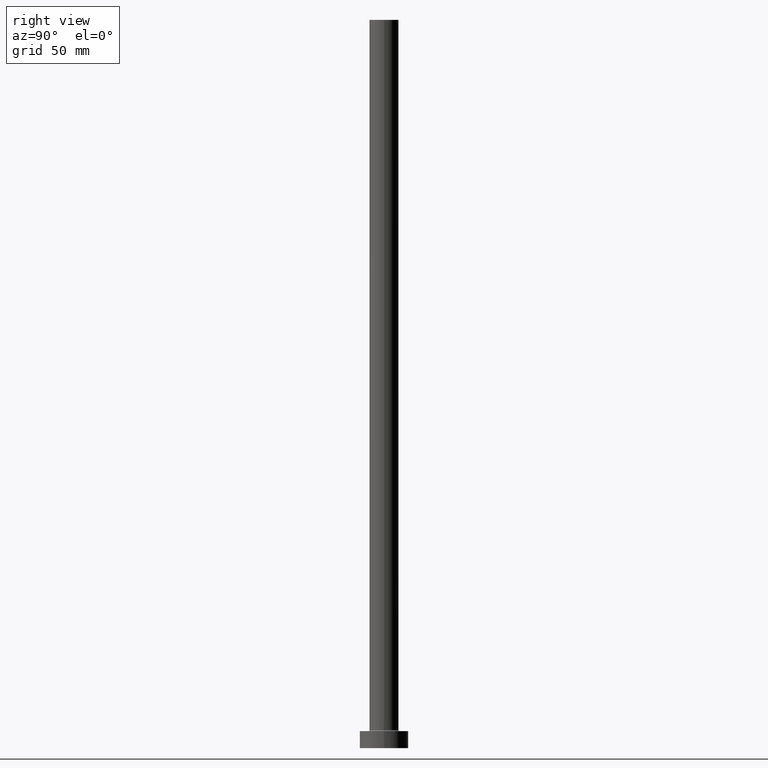
[diagram: clean part render]
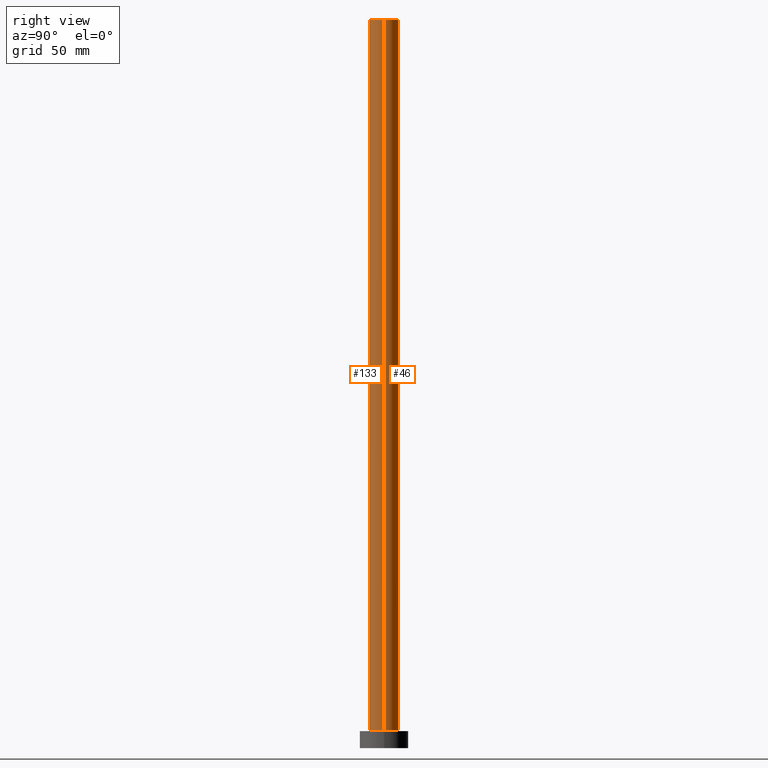
[diagram: same view with one multi-face feature highlighted, each face labeled with its STEP entity id]
A machine part, right view. The highlighted faces form ONE feature: a constant-radius fillet chain: 2 tangent blend faces with common blend radius 6 mm. The faces share edges in the B-rep.
Their STEP definitions:
[1] entity #133 (Cylinder):
#28 = EDGE_CURVE ( 'NONE', #340, #48, #40, .T. ) ;
#37 = EDGE_CURVE ( 'NONE', #48, #116, #206, .T. ) ;
#40 = CIRCLE ( 'NONE', #148, 6.000000000000000888 ) ;
#48 = VERTEX_POINT ( 'NONE', #94 ) ;
#73 = CARTESIAN_POINT ( 'NONE',  ( 0.000000000000000000, 0.000000000000000000, 300.0000000000000000 ) ) ;
#74 = ORIENTED_EDGE ( 'NONE', *, *, #441, .T. ) ;
#75 = DIRECTION ( 'NONE',  ( -0.000000000000000000, -0.000000000000000000, -1.000000000000000000 ) ) ;
#94 = CARTESIAN_POINT ( 'NONE',  ( 6.000000000000000888, 7.347880794884120722E-16, 300.0000000000000000 ) ) ;
#116 = VERTEX_POINT ( 'NONE', #210 ) ;
#133 = ADVANCED_FACE ( 'NONE', ( #392 ), #422, .T. ) ;
#136 = VECTOR ( 'NONE', #416, 1000.000000000000000 ) ;
#137 = DIRECTION ( 'NONE',  ( -1.000000000000000000, 0.000000000000000000, 0.000000000000000000 ) ) ;
#145 = EDGE_CURVE ( 'NONE', #340, #252, #430, .T. ) ;
#148 = AXIS2_PLACEMENT_3D ( 'NONE', #350, #408, #380 ) ;
#154 = ORIENTED_EDGE ( 'NONE', *, *, #28, .F. ) ;
#178 = DIRECTION ( 'NONE',  ( 1.000000000000000000, 0.000000000000000000, 0.000000000000000000 ) ) ;
#202 = CARTESIAN_POINT ( 'NONE',  ( -6.000000000000000888, 0.000000000000000000, 300.0000000000000000 ) ) ;
#206 = LINE ( 'NONE', #382, #136 ) ;
#210 = CARTESIAN_POINT ( 'NONE',  ( 6.000000000000000888, 7.347880794884120722E-16, 7.500000000000007105 ) ) ;
#216 = ORIENTED_EDGE ( 'NONE', *, *, #145, .T. ) ;
#249 = CARTESIAN_POINT ( 'NONE',  ( -6.000000000000000888, 0.000000000000000000, 300.0000000000000000 ) ) ;
#251 = DIRECTION ( 'NONE',  ( -0.000000000000000000, -0.000000000000000000, -1.000000000000000000 ) ) ;
#252 = VERTEX_POINT ( 'NONE', #370 ) ;
#256 = DIRECTION ( 'NONE',  ( 0.000000000000000000, 0.000000000000000000, 1.000000000000000000 ) ) ;
#261 = VECTOR ( 'NONE', #75, 1000.000000000000000 ) ;
#288 = AXIS2_PLACEMENT_3D ( 'NONE', #73, #251, #137 ) ;
#329 = EDGE_LOOP ( 'NONE', ( #388, #154, #216, #74 ) ) ;
#340 = VERTEX_POINT ( 'NONE', #202 ) ;
#350 = CARTESIAN_POINT ( 'NONE',  ( 0.000000000000000000, 0.000000000000000000, 300.0000000000000000 ) ) ;
#370 = CARTESIAN_POINT ( 'NONE',  ( -6.000000000000000888, 0.000000000000000000, 7.500000000000007105 ) ) ;
#371 = CIRCLE ( 'NONE', #412, 6.000000000000000888 ) ;
#380 = DIRECTION ( 'NONE',  ( 1.000000000000000000, 0.000000000000000000, 0.000000000000000000 ) ) ;
#382 = CARTESIAN_POINT ( 'NONE',  ( 6.000000000000000888, 7.347880794884120722E-16, 300.0000000000000000 ) ) ;
#388 = ORIENTED_EDGE ( 'NONE', *, *, #37, .F. ) ;
#392 = FACE_OUTER_BOUND ( 'NONE', #329, .T. ) ;
#396 = CARTESIAN_POINT ( 'NONE',  ( 0.000000000000000000, 0.000000000000000000, 7.500000000000007105 ) ) ;
#408 = DIRECTION ( 'NONE',  ( 0.000000000000000000, 0.000000000000000000, 1.000000000000000000 ) ) ;
#412 = AXIS2_PLACEMENT_3D ( 'NONE', #396, #256, #178 ) ;
#416 = DIRECTION ( 'NONE',  ( -0.000000000000000000, -0.000000000000000000, -1.000000000000000000 ) ) ;
#422 = CYLINDRICAL_SURFACE ( 'NONE', #288, 6.000000000000000888 ) ;
#430 = LINE ( 'NONE', #249, #261 ) ;
#441 = EDGE_CURVE ( 'NONE', #252, #116, #371, .T. ) ;
[2] entity #46 (Cylinder):
#11 = CIRCLE ( 'NONE', #404, 6.000000000000000888 ) ;
#29 = DIRECTION ( 'NONE',  ( 1.000000000000000000, 0.000000000000000000, 0.000000000000000000 ) ) ;
#31 = ORIENTED_EDGE ( 'NONE', *, *, #37, .T. ) ;
#37 = EDGE_CURVE ( 'NONE', #48, #116, #206, .T. ) ;
#46 = ADVANCED_FACE ( 'NONE', ( #376 ), #410, .T. ) ;
#48 = VERTEX_POINT ( 'NONE', #94 ) ;
#59 = DIRECTION ( 'NONE',  ( 0.000000000000000000, 0.000000000000000000, 1.000000000000000000 ) ) ;
#75 = DIRECTION ( 'NONE',  ( -0.000000000000000000, -0.000000000000000000, -1.000000000000000000 ) ) ;
#94 = CARTESIAN_POINT ( 'NONE',  ( 6.000000000000000888, 7.347880794884120722E-16, 300.0000000000000000 ) ) ;
#107 = ORIENTED_EDGE ( 'NONE', *, *, #421, .F. ) ;
#113 = ORIENTED_EDGE ( 'NONE', *, *, #248, .T. ) ;
#116 = VERTEX_POINT ( 'NONE', #210 ) ;
#122 = DIRECTION ( 'NONE',  ( 0.000000000000000000, 0.000000000000000000, 1.000000000000000000 ) ) ;
#136 = VECTOR ( 'NONE', #416, 1000.000000000000000 ) ;
#142 = CIRCLE ( 'NONE', #440, 6.000000000000000888 ) ;
#145 = EDGE_CURVE ( 'NONE', #340, #252, #430, .T. ) ;
#202 = CARTESIAN_POINT ( 'NONE',  ( -6.000000000000000888, 0.000000000000000000, 300.0000000000000000 ) ) ;
#206 = LINE ( 'NONE', #382, #136 ) ;
#210 = CARTESIAN_POINT ( 'NONE',  ( 6.000000000000000888, 7.347880794884120722E-16, 7.500000000000007105 ) ) ;
#223 = EDGE_LOOP ( 'NONE', ( #107, #31, #113, #291 ) ) ;
#248 = EDGE_CURVE ( 'NONE', #116, #252, #11, .T. ) ;
#249 = CARTESIAN_POINT ( 'NONE',  ( -6.000000000000000888, 0.000000000000000000, 300.0000000000000000 ) ) ;
#252 = VERTEX_POINT ( 'NONE', #370 ) ;
#261 = VECTOR ( 'NONE', #75, 1000.000000000000000 ) ;
#275 = DIRECTION ( 'NONE',  ( -0.000000000000000000, -0.000000000000000000, -1.000000000000000000 ) ) ;
#291 = ORIENTED_EDGE ( 'NONE', *, *, #145, .F. ) ;
#313 = CARTESIAN_POINT ( 'NONE',  ( 0.000000000000000000, 0.000000000000000000, 7.500000000000007105 ) ) ;
#331 = DIRECTION ( 'NONE',  ( 1.000000000000000000, 0.000000000000000000, 0.000000000000000000 ) ) ;
#340 = VERTEX_POINT ( 'NONE', #202 ) ;
#351 = CARTESIAN_POINT ( 'NONE',  ( 0.000000000000000000, 0.000000000000000000, 300.0000000000000000 ) ) ;
#352 = CARTESIAN_POINT ( 'NONE',  ( 0.000000000000000000, 0.000000000000000000, 300.0000000000000000 ) ) ;
#370 = CARTESIAN_POINT ( 'NONE',  ( -6.000000000000000888, 0.000000000000000000, 7.500000000000007105 ) ) ;
#376 = FACE_OUTER_BOUND ( 'NONE', #223, .T. ) ;
#382 = CARTESIAN_POINT ( 'NONE',  ( 6.000000000000000888, 7.347880794884120722E-16, 300.0000000000000000 ) ) ;
#401 = AXIS2_PLACEMENT_3D ( 'NONE', #352, #275, #445 ) ;
#404 = AXIS2_PLACEMENT_3D ( 'NONE', #313, #122, #331 ) ;
#410 = CYLINDRICAL_SURFACE ( 'NONE', #401, 6.000000000000000888 ) ;
#416 = DIRECTION ( 'NONE',  ( -0.000000000000000000, -0.000000000000000000, -1.000000000000000000 ) ) ;
#421 = EDGE_CURVE ( 'NONE', #48, #340, #142, .T. ) ;
#430 = LINE ( 'NONE', #249, #261 ) ;
#440 = AXIS2_PLACEMENT_3D ( 'NONE', #351, #59, #29 ) ;
#445 = DIRECTION ( 'NONE',  ( -1.000000000000000000, 0.000000000000000000, 0.000000000000000000 ) ) ;